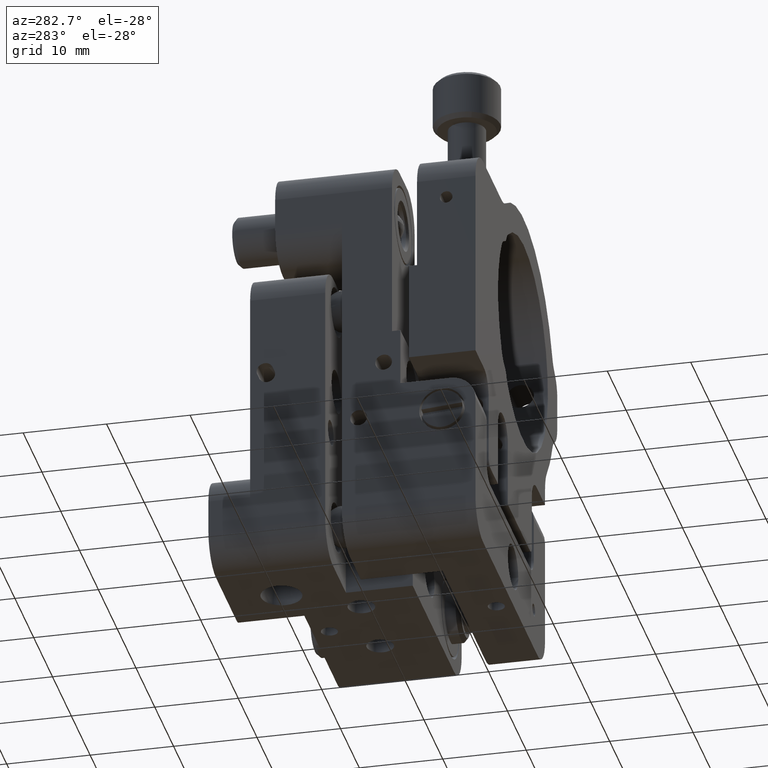
[diagram: clean part render]
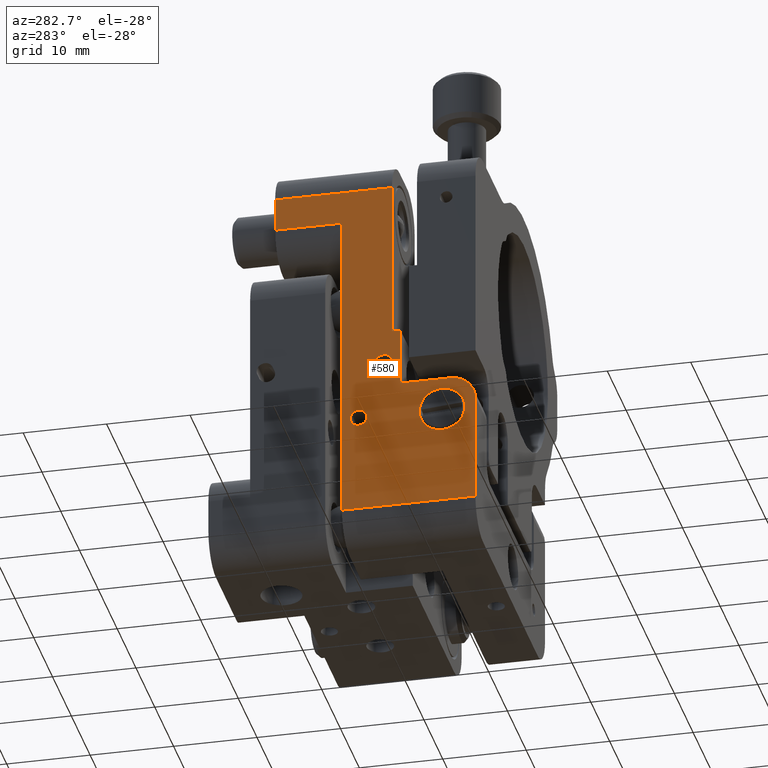
[diagram: same view with one face highlighted and labeled with its STEP entity id]
A machine part, auxiliary view. The second image highlights one B-rep face of the part: STEP entity #580.
In plain terms, the highlighted face is a freeform B-spline surface patch.
Its self-contained STEP definition (entity closure, byte-faithful):
#409=FACE_BOUND('',#1489,.T.);
#410=FACE_BOUND('',#1490,.T.);
#411=FACE_BOUND('',#1491,.T.);
#580=ADVANCED_FACE('',(#1027,#409,#410,#411),#15877,.T.);
#1027=FACE_OUTER_BOUND('',#1488,.T.);
#1488=EDGE_LOOP('',(#2491,#2492,#2493,#2494,#2495,#2496,#2497,#2498,#2499,
#2500,#2501));
#1489=EDGE_LOOP('',(#2502,#2503,#2504));
#1490=EDGE_LOOP('',(#2505,#2506));
#1491=EDGE_LOOP('',(#2507,#2508));
#2491=ORIENTED_EDGE('',*,*,#12777,.F.);
#2492=ORIENTED_EDGE('',*,*,#12849,.T.);
#2493=ORIENTED_EDGE('',*,*,#12850,.T.);
#2494=ORIENTED_EDGE('',*,*,#12851,.T.);
#2495=ORIENTED_EDGE('',*,*,#12852,.T.);
#2496=ORIENTED_EDGE('',*,*,#12853,.T.);
#2497=ORIENTED_EDGE('',*,*,#12854,.T.);
#2498=ORIENTED_EDGE('',*,*,#12855,.T.);
#2499=ORIENTED_EDGE('',*,*,#12781,.F.);
#2500=ORIENTED_EDGE('',*,*,#12763,.F.);
#2501=ORIENTED_EDGE('',*,*,#12759,.F.);
#2502=ORIENTED_EDGE('',*,*,#12833,.F.);
#2503=ORIENTED_EDGE('',*,*,#12838,.F.);
#2504=ORIENTED_EDGE('',*,*,#12837,.F.);
#2505=ORIENTED_EDGE('',*,*,#12815,.F.);
#2506=ORIENTED_EDGE('',*,*,#12819,.F.);
#2507=ORIENTED_EDGE('',*,*,#12856,.T.);
#2508=ORIENTED_EDGE('',*,*,#12857,.T.);
#4748=PCURVE('',#15872,#7122);
#4752=PCURVE('',#15873,#7126);
#4769=PCURVE('',#15874,#7143);
#4774=PCURVE('',#15875,#7148);
#4816=PCURVE('',#16051,#7190);
#4822=PCURVE('',#16052,#7196);
#4840=PCURVE('',#16054,#7214);
#4846=PCURVE('',#16055,#7220);
#4847=PCURVE('',#16055,#7221);
#4865=PCURVE('',#15877,#7239);
#4866=PCURVE('',#15877,#7240);
#4867=PCURVE('',#15877,#7241);
#4868=PCURVE('',#15877,#7242);
#4869=PCURVE('',#15877,#7243);
#4870=PCURVE('',#15877,#7244);
#4871=PCURVE('',#15877,#7245);
#4872=PCURVE('',#15877,#7246);
#4873=PCURVE('',#15877,#7247);
#4874=PCURVE('',#15877,#7248);
#4875=PCURVE('',#15877,#7249);
#4876=PCURVE('',#15877,#7250);
#4877=PCURVE('',#15877,#7251);
#4878=PCURVE('',#15877,#7252);
#4879=PCURVE('',#15877,#7253);
#4880=PCURVE('',#15877,#7254);
#4881=PCURVE('',#15877,#7255);
#4882=PCURVE('',#15877,#7256);
#5074=PCURVE('',#15890,#7448);
#5119=PCURVE('',#15892,#7493);
#5131=PCURVE('',#16080,#7505);
#5139=PCURVE('',#16082,#7513);
#5177=PCURVE('',#16089,#7551);
#5183=PCURVE('',#16090,#7557);
#5224=PCURVE('',#16092,#7598);
#5257=PCURVE('',#16095,#7631);
#5278=PCURVE('',#15901,#7652);
#7122=DEFINITIONAL_REPRESENTATION('',(#9470),#34671);
#7126=DEFINITIONAL_REPRESENTATION('',(#9478),#34671);
#7143=DEFINITIONAL_REPRESENTATION('',(#9493),#34671);
#7148=DEFINITIONAL_REPRESENTATION('',(#9496),#34671);
#7190=DEFINITIONAL_REPRESENTATION('',(#9552),#34671);
#7196=DEFINITIONAL_REPRESENTATION('',(#9560),#34671);
#7214=DEFINITIONAL_REPRESENTATION('',(#9583),#34671);
#7220=DEFINITIONAL_REPRESENTATION('',(#9591),#34671);
#7221=DEFINITIONAL_REPRESENTATION('',(#9592),#34671);
#7239=DEFINITIONAL_REPRESENTATION('',(#9613),#34671);
#7240=DEFINITIONAL_REPRESENTATION('',(#9615),#34671);
#7241=DEFINITIONAL_REPRESENTATION('',(#9617),#34671);
#7242=DEFINITIONAL_REPRESENTATION('',(#9619),#34671);
#7243=DEFINITIONAL_REPRESENTATION('',(#9621),#34671);
#7244=DEFINITIONAL_REPRESENTATION('',(#9623),#34671);
#7245=DEFINITIONAL_REPRESENTATION('',(#9625),#34671);
#7246=DEFINITIONAL_REPRESENTATION('',(#14064),#34671);
#7247=DEFINITIONAL_REPRESENTATION('',(#9626),#34671);
#7248=DEFINITIONAL_REPRESENTATION('',(#9627),#34671);
#7249=DEFINITIONAL_REPRESENTATION('',(#9628),#34671);
#7250=DEFINITIONAL_REPRESENTATION('',(#14065),#34671);
#7251=DEFINITIONAL_REPRESENTATION('',(#14066),#34671);
#7252=DEFINITIONAL_REPRESENTATION('',(#14067),#34671);
#7253=DEFINITIONAL_REPRESENTATION('',(#14068),#34671);
#7254=DEFINITIONAL_REPRESENTATION('',(#14069),#34671);
#7255=DEFINITIONAL_REPRESENTATION('',(#14071),#34671);
#7256=DEFINITIONAL_REPRESENTATION('',(#14073),#34671);
#7448=DEFINITIONAL_REPRESENTATION('',(#9834),#34671);
#7493=DEFINITIONAL_REPRESENTATION('',(#9860),#34671);
#7505=DEFINITIONAL_REPRESENTATION('',(#9868),#34671);
#7513=DEFINITIONAL_REPRESENTATION('',(#9876),#34671);
#7551=DEFINITIONAL_REPRESENTATION('',(#9908),#34671);
#7557=DEFINITIONAL_REPRESENTATION('',(#9914),#34671);
#7598=DEFINITIONAL_REPRESENTATION('',(#9950),#34671);
#7631=DEFINITIONAL_REPRESENTATION('',(#9986),#34671);
#7652=DEFINITIONAL_REPRESENTATION('',(#10006),#34671);
#9469=B_SPLINE_CURVE_WITH_KNOTS('',1,(#21285,#21286),.UNSPECIFIED.,.F.,
 .F.,(2,2),(0.,0.999999999999999),.UNSPECIFIED.);
#9470=B_SPLINE_CURVE_WITH_KNOTS('',1,(#21287,#21288),.UNSPECIFIED.,.F.,
 .F.,(2,2),(0.,0.999999999999999),.UNSPECIFIED.);
#9477=B_SPLINE_CURVE_WITH_KNOTS('',1,(#21301,#21302),.UNSPECIFIED.,.F.,
 .F.,(2,2),(-7.,0.),.UNSPECIFIED.);
#9478=B_SPLINE_CURVE_WITH_KNOTS('',1,(#21303,#21304),.UNSPECIFIED.,.F.,
 .F.,(2,2),(-7.,0.),.UNSPECIFIED.);
#9492=B_SPLINE_CURVE_WITH_KNOTS('',1,(#21383,#21384),.UNSPECIFIED.,.F.,
 .F.,(2,2),(0.,19.),.UNSPECIFIED.);
#9493=B_SPLINE_CURVE_WITH_KNOTS('',1,(#21385,#21386),.UNSPECIFIED.,.F.,
 .F.,(2,2),(0.,19.),.UNSPECIFIED.);
#9495=B_SPLINE_CURVE_WITH_KNOTS('',1,(#21411,#21412),.UNSPECIFIED.,.F.,
 .F.,(2,2),(0.,6.),.UNSPECIFIED.);
#9496=B_SPLINE_CURVE_WITH_KNOTS('',1,(#21413,#21414),.UNSPECIFIED.,.F.,
 .F.,(2,2),(0.,6.),.UNSPECIFIED.);
#9552=B_SPLINE_CURVE_WITH_KNOTS('',1,(#21710,#21711),.UNSPECIFIED.,.F.,
 .F.,(2,2),(0.,3.14159265358979),.UNSPECIFIED.);
#9560=B_SPLINE_CURVE_WITH_KNOTS('',1,(#21755,#21756),.UNSPECIFIED.,.F.,
 .F.,(2,2),(0.,3.14159265358979),.UNSPECIFIED.);
#9583=B_SPLINE_CURVE_WITH_KNOTS('',1,(#21842,#21843),.UNSPECIFIED.,.F.,
 .F.,(2,2),(0.,3.14159265358979),.UNSPECIFIED.);
#9591=B_SPLINE_CURVE_WITH_KNOTS('',1,(#21871,#21872),.UNSPECIFIED.,.F.,
 .F.,(2,2),(3.14159265358979,4.71238898038469),.UNSPECIFIED.);
#9592=B_SPLINE_CURVE_WITH_KNOTS('',1,(#21876,#21877),.UNSPECIFIED.,.F.,
 .F.,(2,2),(0.,1.5707963267949),.UNSPECIFIED.);
#9613=B_SPLINE_CURVE_WITH_KNOTS('',1,(#21954,#21955),.UNSPECIFIED.,.F.,
 .F.,(2,2),(0.,19.),.UNSPECIFIED.);
#9614=B_SPLINE_CURVE_WITH_KNOTS('',1,(#21956,#21957),.UNSPECIFIED.,.F.,
 .F.,(2,2),(0.,14.),.UNSPECIFIED.);
#9615=B_SPLINE_CURVE_WITH_KNOTS('',1,(#21958,#21959),.UNSPECIFIED.,.F.,
 .F.,(2,2),(0.,14.),.UNSPECIFIED.);
#9616=B_SPLINE_CURVE_WITH_KNOTS('',1,(#21960,#21961),.UNSPECIFIED.,.F.,
 .F.,(2,2),(-4.,0.),.UNSPECIFIED.);
#9617=B_SPLINE_CURVE_WITH_KNOTS('',1,(#21962,#21963),.UNSPECIFIED.,.F.,
 .F.,(2,2),(-4.,0.),.UNSPECIFIED.);
#9618=B_SPLINE_CURVE_WITH_KNOTS('',1,(#21964,#21965),.UNSPECIFIED.,.F.,
 .F.,(2,2),(0.,8.),.UNSPECIFIED.);
#9619=B_SPLINE_CURVE_WITH_KNOTS('',1,(#21966,#21967),.UNSPECIFIED.,.F.,
 .F.,(2,2),(0.,8.),.UNSPECIFIED.);
#9620=B_SPLINE_CURVE_WITH_KNOTS('',1,(#21968,#21969),.UNSPECIFIED.,.F.,
 .F.,(2,2),(0.,38.),.UNSPECIFIED.);
#9621=B_SPLINE_CURVE_WITH_KNOTS('',1,(#21970,#21971),.UNSPECIFIED.,.F.,
 .F.,(2,2),(0.,38.),.UNSPECIFIED.);
#9622=B_SPLINE_CURVE_WITH_KNOTS('',1,(#21972,#21973),.UNSPECIFIED.,.F.,
 .F.,(2,2),(-16.,0.),.UNSPECIFIED.);
#9623=B_SPLINE_CURVE_WITH_KNOTS('',1,(#21974,#21975),.UNSPECIFIED.,.F.,
 .F.,(2,2),(-16.,0.),.UNSPECIFIED.);
#9624=B_SPLINE_CURVE_WITH_KNOTS('',1,(#21976,#21977),.UNSPECIFIED.,.F.,
 .F.,(2,2),(0.,13.),.UNSPECIFIED.);
#9625=B_SPLINE_CURVE_WITH_KNOTS('',1,(#21978,#21979),.UNSPECIFIED.,.F.,
 .F.,(2,2),(0.,13.),.UNSPECIFIED.);
#9626=B_SPLINE_CURVE_WITH_KNOTS('',1,(#21986,#21987),.UNSPECIFIED.,.F.,
 .F.,(2,2),(0.,6.),.UNSPECIFIED.);
#9627=B_SPLINE_CURVE_WITH_KNOTS('',1,(#21988,#21989),.UNSPECIFIED.,.F.,
 .F.,(2,2),(-7.,0.),.UNSPECIFIED.);
#9628=B_SPLINE_CURVE_WITH_KNOTS('',1,(#21990,#21991),.UNSPECIFIED.,.F.,
 .F.,(2,2),(0.,0.999999999999999),.UNSPECIFIED.);
#9834=B_SPLINE_CURVE_WITH_KNOTS('',1,(#23055,#23056),.UNSPECIFIED.,.F.,
 .F.,(2,2),(0.,38.),.UNSPECIFIED.);
#9860=B_SPLINE_CURVE_WITH_KNOTS('',1,(#23214,#23215),.UNSPECIFIED.,.F.,
 .F.,(2,2),(-4.,0.),.UNSPECIFIED.);
#9868=B_SPLINE_CURVE_WITH_KNOTS('',1,(#23267,#23268),.UNSPECIFIED.,.F.,
 .F.,(2,2),(0.,8.),.UNSPECIFIED.);
#9876=B_SPLINE_CURVE_WITH_KNOTS('',1,(#23291,#23292),.UNSPECIFIED.,.F.,
 .F.,(2,2),(-16.,0.),.UNSPECIFIED.);
#9908=B_SPLINE_CURVE_WITH_KNOTS('',1,(#23451,#23452),.UNSPECIFIED.,.F.,
 .F.,(2,2),(-8.57497714797334,0.),.UNSPECIFIED.);
#9914=B_SPLINE_CURVE_WITH_KNOTS('',1,(#23477,#23478),.UNSPECIFIED.,.F.,
 .F.,(2,2),(-8.57497714797334,0.),.UNSPECIFIED.);
#9950=B_SPLINE_CURVE_WITH_KNOTS('',1,(#23634,#23635),.UNSPECIFIED.,.F.,
 .F.,(2,2),(0.,4.71238898038469),.UNSPECIFIED.);
#9986=B_SPLINE_CURVE_WITH_KNOTS('',1,(#23726,#23727),.UNSPECIFIED.,.F.,
 .F.,(2,2),(0.,14.),.UNSPECIFIED.);
#10006=B_SPLINE_CURVE_WITH_KNOTS('',1,(#23774,#23775),.UNSPECIFIED.,.F.,
 .F.,(2,2),(0.,13.),.UNSPECIFIED.);
#11545=SURFACE_CURVE('',#9469,(#4748,#4875),.PCURVE_S1.);
#11549=SURFACE_CURVE('',#9477,(#4752,#4874),.PCURVE_S1.);
#11563=SURFACE_CURVE('',#9492,(#4769,#4865),.PCURVE_S1.);
#11567=SURFACE_CURVE('',#9495,(#4774,#4873),.PCURVE_S1.);
#11601=SURFACE_CURVE('',#14041,(#4816,#4879),.PCURVE_S1.);
#11605=SURFACE_CURVE('',#14043,(#4822,#4880),.PCURVE_S1.);
#11619=SURFACE_CURVE('',#14052,(#4840,#4876),.PCURVE_S1.);
#11623=SURFACE_CURVE('',#14054,(#4846,#4878),.PCURVE_S1.);
#11624=SURFACE_CURVE('',#14055,(#4847,#4877),.PCURVE_S1.);
#11635=SURFACE_CURVE('',#9614,(#4866,#5257),.PCURVE_S1.);
#11636=SURFACE_CURVE('',#9616,(#4867,#5119),.PCURVE_S1.);
#11637=SURFACE_CURVE('',#9618,(#4868,#5131),.PCURVE_S1.);
#11638=SURFACE_CURVE('',#9620,(#4869,#5074),.PCURVE_S1.);
#11639=SURFACE_CURVE('',#9622,(#4870,#5139),.PCURVE_S1.);
#11640=SURFACE_CURVE('',#9624,(#4871,#5278),.PCURVE_S1.);
#11641=SURFACE_CURVE('',#14063,(#4872,#5224),.PCURVE_S1.);
#11642=SURFACE_CURVE('',#14070,(#4881,#5183),.PCURVE_S1.);
#11643=SURFACE_CURVE('',#14072,(#4882,#5177),.PCURVE_S1.);
#12759=EDGE_CURVE('',#15196,#15197,#11545,.T.);
#12763=EDGE_CURVE('',#15197,#15200,#11549,.T.);
#12777=EDGE_CURVE('',#15211,#15196,#11563,.T.);
#12781=EDGE_CURVE('',#15200,#15215,#11567,.T.);
#12815=EDGE_CURVE('',#15243,#15244,#11601,.T.);
#12819=EDGE_CURVE('',#15244,#15243,#11605,.T.);
#12833=EDGE_CURVE('',#15257,#15258,#11619,.T.);
#12837=EDGE_CURVE('',#15258,#15260,#11623,.T.);
#12838=EDGE_CURVE('',#15260,#15257,#11624,.T.);
#12849=EDGE_CURVE('',#15211,#15268,#11635,.T.);
#12850=EDGE_CURVE('',#15268,#15269,#11636,.T.);
#12851=EDGE_CURVE('',#15269,#15270,#11637,.T.);
#12852=EDGE_CURVE('',#15270,#15271,#11638,.T.);
#12853=EDGE_CURVE('',#15271,#15272,#11639,.T.);
#12854=EDGE_CURVE('',#15272,#15273,#11640,.T.);
#12855=EDGE_CURVE('',#15273,#15215,#11641,.T.);
#12856=EDGE_CURVE('',#15275,#15274,#11642,.T.);
#12857=EDGE_CURVE('',#15274,#15275,#11643,.T.);
#14041=(
BOUNDED_CURVE()
B_SPLINE_CURVE(2,(#21705,#21706,#21707,#21708,#21709),.UNSPECIFIED.,.F.,
 .F.)
B_SPLINE_CURVE_WITH_KNOTS((3,2,3),(0.,1.57079632679489,3.14159265358979),
 .UNSPECIFIED.)
CURVE()
GEOMETRIC_REPRESENTATION_ITEM()
RATIONAL_B_SPLINE_CURVE((1.,0.707106781186548,1.,0.707106781186548,1.))
REPRESENTATION_ITEM('')
);
#14043=(
BOUNDED_CURVE()
B_SPLINE_CURVE(2,(#21750,#21751,#21752,#21753,#21754),.UNSPECIFIED.,.F.,
 .F.)
B_SPLINE_CURVE_WITH_KNOTS((3,2,3),(0.,1.5707963267949,3.14159265358979),
 .UNSPECIFIED.)
CURVE()
GEOMETRIC_REPRESENTATION_ITEM()
RATIONAL_B_SPLINE_CURVE((1.,0.707106781186548,1.,0.707106781186548,1.))
REPRESENTATION_ITEM('')
);
#14052=(
BOUNDED_CURVE()
B_SPLINE_CURVE(2,(#21837,#21838,#21839,#21840,#21841),.UNSPECIFIED.,.F.,
 .F.)
B_SPLINE_CURVE_WITH_KNOTS((3,2,3),(0.,1.57079632679489,3.14159265358979),
 .UNSPECIFIED.)
CURVE()
GEOMETRIC_REPRESENTATION_ITEM()
RATIONAL_B_SPLINE_CURVE((1.,0.707106781186548,1.,0.707106781186548,1.))
REPRESENTATION_ITEM('')
);
#14054=(
BOUNDED_CURVE()
B_SPLINE_CURVE(2,(#21868,#21869,#21870),.UNSPECIFIED.,.F.,.F.)
B_SPLINE_CURVE_WITH_KNOTS((3,3),(3.14159265358979,4.71238898038469),
 .UNSPECIFIED.)
CURVE()
GEOMETRIC_REPRESENTATION_ITEM()
RATIONAL_B_SPLINE_CURVE((1.,0.707106781186548,1.))
REPRESENTATION_ITEM('')
);
#14055=(
BOUNDED_CURVE()
B_SPLINE_CURVE(2,(#21873,#21874,#21875),.UNSPECIFIED.,.F.,.F.)
B_SPLINE_CURVE_WITH_KNOTS((3,3),(0.,1.5707963267949),.UNSPECIFIED.)
CURVE()
GEOMETRIC_REPRESENTATION_ITEM()
RATIONAL_B_SPLINE_CURVE((1.,0.707106781186548,1.))
REPRESENTATION_ITEM('')
);
#14063=(
BOUNDED_CURVE()
B_SPLINE_CURVE(2,(#21980,#21981,#21982),.UNSPECIFIED.,.F.,.F.)
B_SPLINE_CURVE_WITH_KNOTS((3,3),(0.,4.71238898038469),.UNSPECIFIED.)
CURVE()
GEOMETRIC_REPRESENTATION_ITEM()
RATIONAL_B_SPLINE_CURVE((1.,0.707106781186548,1.))
REPRESENTATION_ITEM('')
);
#14064=(
BOUNDED_CURVE()
B_SPLINE_CURVE(2,(#21983,#21984,#21985),.UNSPECIFIED.,.F.,.F.)
B_SPLINE_CURVE_WITH_KNOTS((3,3),(0.,4.71238898038469),.UNSPECIFIED.)
CURVE()
GEOMETRIC_REPRESENTATION_ITEM()
RATIONAL_B_SPLINE_CURVE((1.,0.707106781186548,1.))
REPRESENTATION_ITEM('')
);
#14065=(
BOUNDED_CURVE()
B_SPLINE_CURVE(2,(#21992,#21993,#21994,#21995,#21996),.UNSPECIFIED.,.F.,
 .F.)
B_SPLINE_CURVE_WITH_KNOTS((3,2,3),(0.,1.5707963267949,3.14159265358979),
 .UNSPECIFIED.)
CURVE()
GEOMETRIC_REPRESENTATION_ITEM()
RATIONAL_B_SPLINE_CURVE((1.,0.707106781186548,1.,0.707106781186548,1.))
REPRESENTATION_ITEM('')
);
#14066=(
BOUNDED_CURVE()
B_SPLINE_CURVE(2,(#21997,#21998,#21999),.UNSPECIFIED.,.F.,.F.)
B_SPLINE_CURVE_WITH_KNOTS((3,3),(0.,1.5707963267949),.UNSPECIFIED.)
CURVE()
GEOMETRIC_REPRESENTATION_ITEM()
RATIONAL_B_SPLINE_CURVE((1.,0.707106781186548,1.))
REPRESENTATION_ITEM('')
);
#14067=(
BOUNDED_CURVE()
B_SPLINE_CURVE(2,(#22000,#22001,#22002),.UNSPECIFIED.,.F.,.F.)
B_SPLINE_CURVE_WITH_KNOTS((3,3),(3.14159265358979,4.71238898038469),
 .UNSPECIFIED.)
CURVE()
GEOMETRIC_REPRESENTATION_ITEM()
RATIONAL_B_SPLINE_CURVE((1.,0.707106781186548,1.))
REPRESENTATION_ITEM('')
);
#14068=(
BOUNDED_CURVE()
B_SPLINE_CURVE(2,(#22003,#22004,#22005,#22006,#22007),.UNSPECIFIED.,.F.,
 .F.)
B_SPLINE_CURVE_WITH_KNOTS((3,2,3),(0.,1.5707963267949,3.14159265358979),
 .UNSPECIFIED.)
CURVE()
GEOMETRIC_REPRESENTATION_ITEM()
RATIONAL_B_SPLINE_CURVE((1.,0.707106781186548,1.,0.707106781186548,1.))
REPRESENTATION_ITEM('')
);
#14069=(
BOUNDED_CURVE()
B_SPLINE_CURVE(2,(#22008,#22009,#22010,#22011,#22012),.UNSPECIFIED.,.F.,
 .F.)
B_SPLINE_CURVE_WITH_KNOTS((3,2,3),(0.,1.5707963267949,3.14159265358979),
 .UNSPECIFIED.)
CURVE()
GEOMETRIC_REPRESENTATION_ITEM()
RATIONAL_B_SPLINE_CURVE((1.,0.707106781186548,1.,0.707106781186548,1.))
REPRESENTATION_ITEM('')
);
#14070=(
BOUNDED_CURVE()
B_SPLINE_CURVE(2,(#22013,#22014,#22015,#22016,#22017),.UNSPECIFIED.,.F.,
 .F.)
B_SPLINE_CURVE_WITH_KNOTS((3,2,3),(-8.57497714797334,-4.28748857398666,
0.),.UNSPECIFIED.)
CURVE()
GEOMETRIC_REPRESENTATION_ITEM()
RATIONAL_B_SPLINE_CURVE((1.,0.707106781186548,1.,0.707106781186548,1.))
REPRESENTATION_ITEM('')
);
#14071=(
BOUNDED_CURVE()
B_SPLINE_CURVE(2,(#22018,#22019,#22020,#22021,#22022),.UNSPECIFIED.,.F.,
 .F.)
B_SPLINE_CURVE_WITH_KNOTS((3,2,3),(-8.57497714797334,-4.28748857398667,
0.),.UNSPECIFIED.)
CURVE()
GEOMETRIC_REPRESENTATION_ITEM()
RATIONAL_B_SPLINE_CURVE((1.,0.707106781186548,1.,0.707106781186548,1.))
REPRESENTATION_ITEM('')
);
#14072=(
BOUNDED_CURVE()
B_SPLINE_CURVE(2,(#22023,#22024,#22025,#22026,#22027),.UNSPECIFIED.,.F.,
 .F.)
B_SPLINE_CURVE_WITH_KNOTS((3,2,3),(-8.57497714797334,-4.28748857398667,
0.),.UNSPECIFIED.)
CURVE()
GEOMETRIC_REPRESENTATION_ITEM()
RATIONAL_B_SPLINE_CURVE((1.,0.707106781186548,1.,0.707106781186548,1.))
REPRESENTATION_ITEM('')
);
#14073=(
BOUNDED_CURVE()
B_SPLINE_CURVE(2,(#22028,#22029,#22030,#22031,#22032),.UNSPECIFIED.,.F.,
 .F.)
B_SPLINE_CURVE_WITH_KNOTS((3,2,3),(-8.57497714797334,-4.28748857398667,
0.),.UNSPECIFIED.)
CURVE()
GEOMETRIC_REPRESENTATION_ITEM()
RATIONAL_B_SPLINE_CURVE((1.,0.707106781186548,1.,0.707106781186548,1.))
REPRESENTATION_ITEM('')
);
#15196=VERTEX_POINT('',#21029);
#15197=VERTEX_POINT('',#21030);
#15200=VERTEX_POINT('',#21033);
#15211=VERTEX_POINT('',#21044);
#15215=VERTEX_POINT('',#21048);
#15243=VERTEX_POINT('',#21076);
#15244=VERTEX_POINT('',#21077);
#15257=VERTEX_POINT('',#21090);
#15258=VERTEX_POINT('',#21091);
#15260=VERTEX_POINT('',#21093);
#15268=VERTEX_POINT('',#21101);
#15269=VERTEX_POINT('',#21102);
#15270=VERTEX_POINT('',#21103);
#15271=VERTEX_POINT('',#21104);
#15272=VERTEX_POINT('',#21105);
#15273=VERTEX_POINT('',#21106);
#15274=VERTEX_POINT('',#21107);
#15275=VERTEX_POINT('',#21108);
#15872=B_SPLINE_SURFACE_WITH_KNOTS('',1,1,((#19905,#19906),(#19907,#19908)),
 .UNSPECIFIED.,.F.,.F.,.F.,(2,2),(2,2),(-1.44,1.2490009027033E-15),(-16.7460024019211,
8.39328606616618E-14),.UNSPECIFIED.);
#15873=B_SPLINE_SURFACE_WITH_KNOTS('',1,1,((#19909,#19910),(#19911,#19912)),
 .UNSPECIFIED.,.F.,.F.,.F.,(2,2),(2,2),(3.5527136788005E-14,44.6399999999998),
(-1.20792265079217E-13,8.64000000000012),.UNSPECIFIED.);
#15874=B_SPLINE_SURFACE_WITH_KNOTS('',1,1,((#19913,#19914),(#19915,#19916)),
 .UNSPECIFIED.,.F.,.F.,.F.,(2,2),(2,2),(-8.39328606616618E-14,16.7460024019211),
(4.44089209850063E-16,27.84),.UNSPECIFIED.);
#15875=B_SPLINE_SURFACE_WITH_KNOTS('',1,1,((#19917,#19918),(#19919,#19920)),
 .UNSPECIFIED.,.F.,.F.,.F.,(2,2),(2,2),(-7.43999999999999,5.55111512312578E-16),
(-15.4525492133607,-3.02646796512818E-13),.UNSPECIFIED.);
#15877=B_SPLINE_SURFACE_WITH_KNOTS('',1,1,((#20215,#20216),(#20217,#20218)),
 .UNSPECIFIED.,.F.,.F.,.F.,(2,2),(2,2),(3.5527136788005E-15,50.64),(0.,
29.04),.UNSPECIFIED.);
#15890=B_SPLINE_SURFACE_WITH_KNOTS('',1,1,((#20609,#20610),(#20611,#20612)),
 .UNSPECIFIED.,.F.,.F.,.F.,(2,2),(2,2),(-44.6399999999998,-3.37507799486048E-14),
(2.93098878501041E-14,50.64),.UNSPECIFIED.);
#15892=B_SPLINE_SURFACE_WITH_KNOTS('',1,1,((#20635,#20636),(#20637,#20638)),
 .UNSPECIFIED.,.F.,.F.,.F.,(2,2),(2,2),(-14.64,-1.26565424807268E-14),(-1.11022302462516E-15,
14.64),.UNSPECIFIED.);
#15901=B_SPLINE_SURFACE_WITH_KNOTS('',1,1,((#20995,#20996),(#20997,#20998)),
 .UNSPECIFIED.,.F.,.F.,.F.,(2,2),(2,2),(4.39648317751562E-14,44.6399999999997),
(-3.10862446895044E-15,20.64),.UNSPECIFIED.);
#16051=(
BOUNDED_SURFACE()
B_SPLINE_SURFACE(1,2,((#20049,#20050,#20051,#20052,#20053,#20054,#20055,
#20056,#20057),(#20058,#20059,#20060,#20061,#20062,#20063,#20064,#20065,
#20066)),.UNSPECIFIED.,.F.,.F.,.F.)
B_SPLINE_SURFACE_WITH_KNOTS((2,2),(3,2,2,2,3),(0.,2.98162644495477),(0.,
1.5707963267949,3.14159265358979,4.71238898038469,6.28318530717959),
 .UNSPECIFIED.)
GEOMETRIC_REPRESENTATION_ITEM()
RATIONAL_B_SPLINE_SURFACE(((1.,0.707106781186548,1.,0.707106781186548,1.,
0.707106781186548,1.,0.707106781186548,1.),(1.,0.707106781186548,1.,0.707106781186548,
1.,0.707106781186548,1.,0.707106781186548,1.)))
REPRESENTATION_ITEM('')
SURFACE()
);
#16052=(
BOUNDED_SURFACE()
B_SPLINE_SURFACE(1,2,((#20067,#20068,#20069,#20070,#20071,#20072,#20073,
#20074,#20075),(#20076,#20077,#20078,#20079,#20080,#20081,#20082,#20083,
#20084)),.UNSPECIFIED.,.F.,.F.,.F.)
B_SPLINE_SURFACE_WITH_KNOTS((2,2),(3,2,2,2,3),(0.,2.98162644495477),(0.,
1.5707963267949,3.14159265358979,4.71238898038469,6.28318530717959),
 .UNSPECIFIED.)
GEOMETRIC_REPRESENTATION_ITEM()
RATIONAL_B_SPLINE_SURFACE(((1.,0.707106781186548,1.,0.707106781186548,1.,
0.707106781186548,1.,0.707106781186548,1.),(1.,0.707106781186548,1.,0.707106781186548,
1.,0.707106781186548,1.,0.707106781186548,1.)))
REPRESENTATION_ITEM('')
SURFACE()
);
#16054=(
BOUNDED_SURFACE()
B_SPLINE_SURFACE(1,2,((#20107,#20108,#20109,#20110,#20111,#20112,#20113,
#20114,#20115),(#20116,#20117,#20118,#20119,#20120,#20121,#20122,#20123,
#20124)),.UNSPECIFIED.,.F.,.F.,.F.)
B_SPLINE_SURFACE_WITH_KNOTS((2,2),(3,2,2,2,3),(0.,4.36591477021199),(0.,
1.5707963267949,3.14159265358979,4.71238898038469,6.28318530717959),
 .UNSPECIFIED.)
GEOMETRIC_REPRESENTATION_ITEM()
RATIONAL_B_SPLINE_SURFACE(((1.,0.707106781186548,1.,0.707106781186548,1.,
0.707106781186548,1.,0.707106781186548,1.),(1.,0.707106781186548,1.,0.707106781186548,
1.,0.707106781186548,1.,0.707106781186548,1.)))
REPRESENTATION_ITEM('')
SURFACE()
);
#16055=(
BOUNDED_SURFACE()
B_SPLINE_SURFACE(1,2,((#20125,#20126,#20127,#20128,#20129,#20130,#20131,
#20132,#20133),(#20134,#20135,#20136,#20137,#20138,#20139,#20140,#20141,
#20142)),.UNSPECIFIED.,.F.,.F.,.F.)
B_SPLINE_SURFACE_WITH_KNOTS((2,2),(3,2,2,2,3),(0.,4.36591477021199),(0.,
1.5707963267949,3.14159265358979,4.71238898038469,6.28318530717959),
 .UNSPECIFIED.)
GEOMETRIC_REPRESENTATION_ITEM()
RATIONAL_B_SPLINE_SURFACE(((1.,0.707106781186548,1.,0.707106781186548,1.,
0.707106781186548,1.,0.707106781186548,1.),(1.,0.707106781186548,1.,0.707106781186548,
1.,0.707106781186548,1.,0.707106781186548,1.)))
REPRESENTATION_ITEM('')
SURFACE()
);
#16080=(
BOUNDED_SURFACE()
B_SPLINE_SURFACE(2,1,((#20639,#20640),(#20641,#20642),(#20643,#20644),(#20645,
#20646),(#20647,#20648),(#20649,#20650),(#20651,#20652),(#20653,#20654),
(#20655,#20656)),.UNSPECIFIED.,.T.,.F.,.F.)
B_SPLINE_SURFACE_WITH_KNOTS((3,2,2,2,3),(2,2),(0.,1.5707963267949,3.14159265358979,
4.71238898038469,6.28318530717959),(0.,9.84),.UNSPECIFIED.)
GEOMETRIC_REPRESENTATION_ITEM()
RATIONAL_B_SPLINE_SURFACE(((1.,1.),(0.707106781186548,0.707106781186548),
(1.,1.),(0.707106781186548,0.707106781186548),(1.,1.),(0.707106781186548,
0.707106781186548),(1.,1.),(0.707106781186548,0.707106781186548),(1.,1.)))
REPRESENTATION_ITEM('')
SURFACE()
);
#16082=(
BOUNDED_SURFACE()
B_SPLINE_SURFACE(2,1,((#20675,#20676),(#20677,#20678),(#20679,#20680),(#20681,
#20682),(#20683,#20684),(#20685,#20686),(#20687,#20688),(#20689,#20690),
(#20691,#20692)),.UNSPECIFIED.,.T.,.F.,.F.)
B_SPLINE_SURFACE_WITH_KNOTS((3,2,2,2,3),(2,2),(0.,1.5707963267949,3.14159265358979,
4.71238898038469,6.28318530717959),(0.,19.44),.UNSPECIFIED.)
GEOMETRIC_REPRESENTATION_ITEM()
RATIONAL_B_SPLINE_SURFACE(((1.,1.),(0.707106781186548,0.707106781186548),
(1.,1.),(0.707106781186548,0.707106781186548),(1.,1.),(0.707106781186548,
0.707106781186548),(1.,1.),(0.707106781186548,0.707106781186548),(1.,1.)))
REPRESENTATION_ITEM('')
SURFACE()
);
#16089=(
BOUNDED_SURFACE()
B_SPLINE_SURFACE(1,2,((#20805,#20806,#20807,#20808,#20809,#20810,#20811,
#20812,#20813),(#20814,#20815,#20816,#20817,#20818,#20819,#20820,#20821,
#20822)),.UNSPECIFIED.,.F.,.F.,.F.)
B_SPLINE_SURFACE_WITH_KNOTS((2,2),(3,2,2,2,3),(0.,7.43999999999997),(0.,
1.5707963267949,3.14159265358979,4.71238898038469,6.28318530717959),
 .UNSPECIFIED.)
GEOMETRIC_REPRESENTATION_ITEM()
RATIONAL_B_SPLINE_SURFACE(((1.,0.707106781186548,1.,0.707106781186548,1.,
0.707106781186548,1.,0.707106781186548,1.),(1.,0.707106781186548,1.,0.707106781186548,
1.,0.707106781186548,1.,0.707106781186548,1.)))
REPRESENTATION_ITEM('')
SURFACE()
);
#16090=(
BOUNDED_SURFACE()
B_SPLINE_SURFACE(1,2,((#20823,#20824,#20825,#20826,#20827,#20828,#20829,
#20830,#20831),(#20832,#20833,#20834,#20835,#20836,#20837,#20838,#20839,
#20840)),.UNSPECIFIED.,.F.,.F.,.F.)
B_SPLINE_SURFACE_WITH_KNOTS((2,2),(3,2,2,2,3),(0.,7.43999999999997),(0.,
1.5707963267949,3.14159265358979,4.71238898038469,6.28318530717959),
 .UNSPECIFIED.)
GEOMETRIC_REPRESENTATION_ITEM()
RATIONAL_B_SPLINE_SURFACE(((1.,0.707106781186548,1.,0.707106781186548,1.,
0.707106781186548,1.,0.707106781186548,1.),(1.,0.707106781186548,1.,0.707106781186548,
1.,0.707106781186548,1.,0.707106781186548,1.)))
REPRESENTATION_ITEM('')
SURFACE()
);
#16092=(
BOUNDED_SURFACE()
B_SPLINE_SURFACE(2,1,((#20871,#20872),(#20873,#20874),(#20875,#20876),(#20877,
#20878),(#20879,#20880),(#20881,#20882),(#20883,#20884),(#20885,#20886),
(#20887,#20888)),.UNSPECIFIED.,.T.,.F.,.F.)
B_SPLINE_SURFACE_WITH_KNOTS((3,2,2,2,3),(2,2),(0.,1.5707963267949,3.14159265358979,
4.71238898038469,6.28318530717959),(0.,7.43999999999997),.UNSPECIFIED.)
GEOMETRIC_REPRESENTATION_ITEM()
RATIONAL_B_SPLINE_SURFACE(((1.,1.),(0.707106781186548,0.707106781186548),
(1.,1.),(0.707106781186548,0.707106781186548),(1.,1.),(0.707106781186548,
0.707106781186548),(1.,1.),(0.707106781186548,0.707106781186548),(1.,1.)))
REPRESENTATION_ITEM('')
SURFACE()
);
#16095=(
BOUNDED_SURFACE()
B_SPLINE_SURFACE(2,1,((#20937,#20938),(#20939,#20940),(#20941,#20942),(#20943,
#20944),(#20945,#20946),(#20947,#20948),(#20949,#20950),(#20951,#20952),
(#20953,#20954)),.UNSPECIFIED.,.T.,.F.,.F.)
B_SPLINE_SURFACE_WITH_KNOTS((3,2,2,2,3),(2,2),(0.,1.5707963267949,3.14159265358979,
4.71238898038469,6.28318530717959),(0.,17.04),.UNSPECIFIED.)
GEOMETRIC_REPRESENTATION_ITEM()
RATIONAL_B_SPLINE_SURFACE(((1.,1.),(0.707106781186548,0.707106781186548),
(1.,1.),(0.707106781186548,0.707106781186548),(1.,1.),(0.707106781186548,
0.707106781186548),(1.,1.),(0.707106781186548,0.707106781186548),(1.,1.)))
REPRESENTATION_ITEM('')
SURFACE()
);
#19905=CARTESIAN_POINT('',(99.3959622264539,20.5252520797228,-1.22));
#19906=CARTESIAN_POINT('',(116.141964628375,20.5252520797228,-1.22));
#19907=CARTESIAN_POINT('',(99.3959622264539,20.5252520797228,0.220000000000005));
#19908=CARTESIAN_POINT('',(116.141964628375,20.5252520797228,0.220000000000005));
#19909=CARTESIAN_POINT('',(118.466464428215,12.7052520797227,-0.999999999999995));
#19910=CARTESIAN_POINT('',(118.466464428215,21.3452520797229,-0.999999999999995));
#19911=CARTESIAN_POINT('',(73.8264644282152,12.7052520797227,-0.999999999999995));
#19912=CARTESIAN_POINT('',(73.8264644282152,21.3452520797229,-0.999999999999995));
#19913=CARTESIAN_POINT('',(116.141964628375,18.1052520797228,4.44089209850064E-15));
#19914=CARTESIAN_POINT('',(116.141964628375,45.9452520797228,4.44089209850064E-15));
#19915=CARTESIAN_POINT('',(99.3959622264539,18.1052520797228,4.44089209850064E-15));
#19916=CARTESIAN_POINT('',(99.3959622264539,45.9452520797228,4.44089209850064E-15));
#19917=CARTESIAN_POINT('',(100.581627649301,13.5252520797228,-7.71999999999999));
#19918=CARTESIAN_POINT('',(116.034176862662,13.5252520797228,-7.71999999999999));
#19919=CARTESIAN_POINT('',(100.581627649301,13.5252520797228,-0.279999999999995));
#19920=CARTESIAN_POINT('',(116.034176862662,13.5252520797228,-0.279999999999995));
#20049=CARTESIAN_POINT('',(114.994933298628,8.52525207972283,4.));
#20050=CARTESIAN_POINT('',(114.994933298628,8.52525207972283,5.));
#20051=CARTESIAN_POINT('',(114.994933298628,9.52525207972283,5.));
#20052=CARTESIAN_POINT('',(114.994933298628,10.5252520797228,5.));
#20053=CARTESIAN_POINT('',(114.994933298628,10.5252520797228,4.));
#20054=CARTESIAN_POINT('',(114.994933298628,10.5252520797228,3.));
#20055=CARTESIAN_POINT('',(114.994933298628,9.52525207972283,3.));
#20056=CARTESIAN_POINT('',(114.994933298628,8.52525207972283,3.));
#20057=CARTESIAN_POINT('',(114.994933298628,8.52525207972283,4.));
#20058=CARTESIAN_POINT('',(112.013306853673,8.52525207972283,4.));
#20059=CARTESIAN_POINT('',(112.013306853673,8.52525207972283,5.));
#20060=CARTESIAN_POINT('',(112.013306853673,9.52525207972283,5.));
#20061=CARTESIAN_POINT('',(112.013306853673,10.5252520797228,5.));
#20062=CARTESIAN_POINT('',(112.013306853673,10.5252520797228,4.));
#20063=CARTESIAN_POINT('',(112.013306853673,10.5252520797228,3.));
#20064=CARTESIAN_POINT('',(112.013306853673,9.52525207972283,3.));
#20065=CARTESIAN_POINT('',(112.013306853673,8.52525207972283,3.));
#20066=CARTESIAN_POINT('',(112.013306853673,8.52525207972283,4.));
#20067=CARTESIAN_POINT('',(114.994933298628,8.52525207972283,4.));
#20068=CARTESIAN_POINT('',(114.994933298628,8.52525207972283,5.));
#20069=CARTESIAN_POINT('',(114.994933298628,9.52525207972283,5.));
#20070=CARTESIAN_POINT('',(114.994933298628,10.5252520797228,5.));
#20071=CARTESIAN_POINT('',(114.994933298628,10.5252520797228,4.));
#20072=CARTESIAN_POINT('',(114.994933298628,10.5252520797228,3.));
#20073=CARTESIAN_POINT('',(114.994933298628,9.52525207972283,3.));
#20074=CARTESIAN_POINT('',(114.994933298628,8.52525207972283,3.));
#20075=CARTESIAN_POINT('',(114.994933298628,8.52525207972283,4.));
#20076=CARTESIAN_POINT('',(112.013306853673,8.52525207972283,4.));
#20077=CARTESIAN_POINT('',(112.013306853673,8.52525207972283,5.));
#20078=CARTESIAN_POINT('',(112.013306853673,9.52525207972283,5.));
#20079=CARTESIAN_POINT('',(112.013306853673,10.5252520797228,5.));
#20080=CARTESIAN_POINT('',(112.013306853673,10.5252520797228,4.));
#20081=CARTESIAN_POINT('',(112.013306853673,10.5252520797228,3.));
#20082=CARTESIAN_POINT('',(112.013306853673,9.52525207972283,3.));
#20083=CARTESIAN_POINT('',(112.013306853673,8.52525207972283,3.));
#20084=CARTESIAN_POINT('',(112.013306853673,8.52525207972283,4.));
#20107=CARTESIAN_POINT('',(115.110290659066,15.5252520797228,1.00000000000001));
#20108=CARTESIAN_POINT('',(115.110290659066,15.5252520797228,2.00000000000001));
#20109=CARTESIAN_POINT('',(115.110290659066,16.5252520797228,2.00000000000001));
#20110=CARTESIAN_POINT('',(115.110290659066,17.5252520797228,2.00000000000001));
#20111=CARTESIAN_POINT('',(115.110290659066,17.5252520797228,1.00000000000001));
#20112=CARTESIAN_POINT('',(115.110290659066,17.5252520797228,1.02140518265514E-14));
#20113=CARTESIAN_POINT('',(115.110290659066,16.5252520797228,9.99200722162641E-15));
#20114=CARTESIAN_POINT('',(115.110290659066,15.5252520797228,9.99200722162641E-15));
#20115=CARTESIAN_POINT('',(115.110290659066,15.5252520797228,1.00000000000001));
#20116=CARTESIAN_POINT('',(110.744375888854,15.5252520797228,1.00000000000001));
#20117=CARTESIAN_POINT('',(110.744375888854,15.5252520797228,2.00000000000001));
#20118=CARTESIAN_POINT('',(110.744375888854,16.5252520797228,2.00000000000001));
#20119=CARTESIAN_POINT('',(110.744375888854,17.5252520797228,2.00000000000001));
#20120=CARTESIAN_POINT('',(110.744375888854,17.5252520797228,1.00000000000001));
#20121=CARTESIAN_POINT('',(110.744375888854,17.5252520797228,1.02140518265514E-14));
#20122=CARTESIAN_POINT('',(110.744375888854,16.5252520797228,9.99200722162641E-15));
#20123=CARTESIAN_POINT('',(110.744375888854,15.5252520797228,9.99200722162641E-15));
#20124=CARTESIAN_POINT('',(110.744375888854,15.5252520797228,1.00000000000001));
#20125=CARTESIAN_POINT('',(115.110290659066,15.5252520797228,1.00000000000001));
#20126=CARTESIAN_POINT('',(115.110290659066,15.5252520797228,2.00000000000001));
#20127=CARTESIAN_POINT('',(115.110290659066,16.5252520797228,2.00000000000001));
#20128=CARTESIAN_POINT('',(115.110290659066,17.5252520797228,2.00000000000001));
#20129=CARTESIAN_POINT('',(115.110290659066,17.5252520797228,1.00000000000001));
#20130=CARTESIAN_POINT('',(115.110290659066,17.5252520797228,1.02140518265514E-14));
#20131=CARTESIAN_POINT('',(115.110290659066,16.5252520797228,9.99200722162641E-15));
#20132=CARTESIAN_POINT('',(115.110290659066,15.5252520797228,9.99200722162641E-15));
#20133=CARTESIAN_POINT('',(115.110290659066,15.5252520797228,1.00000000000001));
#20134=CARTESIAN_POINT('',(110.744375888854,15.5252520797228,1.00000000000001));
#20135=CARTESIAN_POINT('',(110.744375888854,15.5252520797228,2.00000000000001));
#20136=CARTESIAN_POINT('',(110.744375888854,16.5252520797228,2.00000000000001));
#20137=CARTESIAN_POINT('',(110.744375888854,17.5252520797228,2.00000000000001));
#20138=CARTESIAN_POINT('',(110.744375888854,17.5252520797228,1.00000000000001));
#20139=CARTESIAN_POINT('',(110.744375888854,17.5252520797228,1.02140518265514E-14));
#20140=CARTESIAN_POINT('',(110.744375888854,16.5252520797228,9.99200722162641E-15));
#20141=CARTESIAN_POINT('',(110.744375888854,15.5252520797228,9.99200722162641E-15));
#20142=CARTESIAN_POINT('',(110.744375888854,15.5252520797228,1.00000000000001));
#20215=CARTESIAN_POINT('',(114.646464428215,-6.79474792027717,-12.52));
#20216=CARTESIAN_POINT('',(114.646464428215,-6.79474792027717,16.52));
#20217=CARTESIAN_POINT('',(114.646464428215,43.8452520797228,-12.52));
#20218=CARTESIAN_POINT('',(114.646464428215,43.8452520797228,16.52));
#20609=CARTESIAN_POINT('',(73.8264644282152,-10.7947479202772,6.));
#20610=CARTESIAN_POINT('',(73.8264644282152,39.8452520797228,6.));
#20611=CARTESIAN_POINT('',(118.466464428215,-10.7947479202772,6.));
#20612=CARTESIAN_POINT('',(118.466464428215,39.8452520797228,6.));
#20635=CARTESIAN_POINT('',(101.326464428215,30.2052520797228,14.));
#20636=CARTESIAN_POINT('',(101.326464428215,44.8452520797228,14.));
#20637=CARTESIAN_POINT('',(115.966464428215,30.2052520797228,14.));
#20638=CARTESIAN_POINT('',(115.966464428215,44.8452520797228,14.));
#20639=CARTESIAN_POINT('',(110.646464428215,39.5252520797228,14.92));
#20640=CARTESIAN_POINT('',(110.646464428215,39.5252520797228,5.08));
#20641=CARTESIAN_POINT('',(114.646464428215,39.5252520797228,14.92));
#20642=CARTESIAN_POINT('',(114.646464428215,39.5252520797228,5.08));
#20643=CARTESIAN_POINT('',(114.646464428215,35.5252520797228,14.92));
#20644=CARTESIAN_POINT('',(114.646464428215,35.5252520797228,5.08));
#20645=CARTESIAN_POINT('',(114.646464428215,31.5252520797228,14.92));
#20646=CARTESIAN_POINT('',(114.646464428215,31.5252520797228,5.08));
#20647=CARTESIAN_POINT('',(110.646464428215,31.5252520797228,14.92));
#20648=CARTESIAN_POINT('',(110.646464428215,31.5252520797228,5.08));
#20649=CARTESIAN_POINT('',(106.646464428215,31.5252520797228,14.92));
#20650=CARTESIAN_POINT('',(106.646464428215,31.5252520797228,5.08));
#20651=CARTESIAN_POINT('',(106.646464428215,35.5252520797228,14.92));
#20652=CARTESIAN_POINT('',(106.646464428215,35.5252520797228,5.08));
#20653=CARTESIAN_POINT('',(106.646464428215,39.5252520797228,14.92));
#20654=CARTESIAN_POINT('',(106.646464428215,39.5252520797228,5.08));
#20655=CARTESIAN_POINT('',(110.646464428215,39.5252520797228,14.92));
#20656=CARTESIAN_POINT('',(110.646464428215,39.5252520797228,5.08));
#20675=CARTESIAN_POINT('',(110.646464428215,1.52525207972283,7.72));
#20676=CARTESIAN_POINT('',(110.646464428215,1.52525207972283,-11.72));
#20677=CARTESIAN_POINT('',(114.646464428215,1.52525207972283,7.72));
#20678=CARTESIAN_POINT('',(114.646464428215,1.52525207972283,-11.72));
#20679=CARTESIAN_POINT('',(114.646464428215,-2.47474792027717,7.72));
#20680=CARTESIAN_POINT('',(114.646464428215,-2.47474792027717,-11.72));
#20681=CARTESIAN_POINT('',(114.646464428215,-6.47474792027717,7.72));
#20682=CARTESIAN_POINT('',(114.646464428215,-6.47474792027717,-11.72));
#20683=CARTESIAN_POINT('',(110.646464428215,-6.47474792027717,7.72));
#20684=CARTESIAN_POINT('',(110.646464428215,-6.47474792027717,-11.72));
#20685=CARTESIAN_POINT('',(106.646464428215,-6.47474792027717,7.72));
#20686=CARTESIAN_POINT('',(106.646464428215,-6.47474792027717,-11.72));
#20687=CARTESIAN_POINT('',(106.646464428215,-2.47474792027717,7.72));
#20688=CARTESIAN_POINT('',(106.646464428215,-2.47474792027717,-11.72));
#20689=CARTESIAN_POINT('',(106.646464428215,1.52525207972283,7.72));
#20690=CARTESIAN_POINT('',(106.646464428215,1.52525207972283,-11.72));
#20691=CARTESIAN_POINT('',(110.646464428215,1.52525207972283,7.72));
#20692=CARTESIAN_POINT('',(110.646464428215,1.52525207972283,-11.72));
#20805=CARTESIAN_POINT('',(115.366464428215,6.79575207972284,-6.));
#20806=CARTESIAN_POINT('',(115.366464428215,6.79575207972284,-3.2705));
#20807=CARTESIAN_POINT('',(115.366464428215,9.52525207972284,-3.2705));
#20808=CARTESIAN_POINT('',(115.366464428215,12.2547520797228,-3.2705));
#20809=CARTESIAN_POINT('',(115.366464428215,12.2547520797228,-6.));
#20810=CARTESIAN_POINT('',(115.366464428215,12.2547520797228,-8.7295));
#20811=CARTESIAN_POINT('',(115.366464428215,9.52525207972284,-8.7295));
#20812=CARTESIAN_POINT('',(115.366464428215,6.79575207972284,-8.7295));
#20813=CARTESIAN_POINT('',(115.366464428215,6.79575207972284,-6.));
#20814=CARTESIAN_POINT('',(107.926464428215,6.79575207972284,-6.));
#20815=CARTESIAN_POINT('',(107.926464428215,6.79575207972284,-3.2705));
#20816=CARTESIAN_POINT('',(107.926464428215,9.52525207972284,-3.2705));
#20817=CARTESIAN_POINT('',(107.926464428215,12.2547520797228,-3.2705));
#20818=CARTESIAN_POINT('',(107.926464428215,12.2547520797228,-6.));
#20819=CARTESIAN_POINT('',(107.926464428215,12.2547520797228,-8.7295));
#20820=CARTESIAN_POINT('',(107.926464428215,9.52525207972284,-8.7295));
#20821=CARTESIAN_POINT('',(107.926464428215,6.79575207972284,-8.7295));
#20822=CARTESIAN_POINT('',(107.926464428215,6.79575207972284,-6.));
#20823=CARTESIAN_POINT('',(115.366464428215,6.79575207972284,-6.));
#20824=CARTESIAN_POINT('',(115.366464428215,6.79575207972284,-3.2705));
#20825=CARTESIAN_POINT('',(115.366464428215,9.52525207972284,-3.2705));
#20826=CARTESIAN_POINT('',(115.366464428215,12.2547520797228,-3.2705));
#20827=CARTESIAN_POINT('',(115.366464428215,12.2547520797228,-6.));
#20828=CARTESIAN_POINT('',(115.366464428215,12.2547520797228,-8.7295));
#20829=CARTESIAN_POINT('',(115.366464428215,9.52525207972284,-8.7295));
#20830=CARTESIAN_POINT('',(115.366464428215,6.79575207972284,-8.7295));
#20831=CARTESIAN_POINT('',(115.366464428215,6.79575207972284,-6.));
#20832=CARTESIAN_POINT('',(107.926464428215,6.79575207972284,-6.));
#20833=CARTESIAN_POINT('',(107.926464428215,6.79575207972284,-3.2705));
#20834=CARTESIAN_POINT('',(107.926464428215,9.52525207972284,-3.2705));
#20835=CARTESIAN_POINT('',(107.926464428215,12.2547520797228,-3.2705));
#20836=CARTESIAN_POINT('',(107.926464428215,12.2547520797228,-6.));
#20837=CARTESIAN_POINT('',(107.926464428215,12.2547520797228,-8.7295));
#20838=CARTESIAN_POINT('',(107.926464428215,9.52525207972284,-8.7295));
#20839=CARTESIAN_POINT('',(107.926464428215,6.79575207972284,-8.7295));
#20840=CARTESIAN_POINT('',(107.926464428215,6.79575207972284,-6.));
#20871=CARTESIAN_POINT('',(107.926464428215,7.5252520797228,-6.99999999999999));
#20872=CARTESIAN_POINT('',(115.366464428215,7.5252520797228,-6.99999999999999));
#20873=CARTESIAN_POINT('',(107.926464428215,7.5252520797228,-9.99999999999999));
#20874=CARTESIAN_POINT('',(115.366464428215,7.5252520797228,-9.99999999999999));
#20875=CARTESIAN_POINT('',(107.926464428215,10.5252520797228,-9.99999999999999));
#20876=CARTESIAN_POINT('',(115.366464428215,10.5252520797228,-9.99999999999999));
#20877=CARTESIAN_POINT('',(107.926464428215,13.5252520797228,-9.99999999999999));
#20878=CARTESIAN_POINT('',(115.366464428215,13.5252520797228,-9.99999999999999));
#20879=CARTESIAN_POINT('',(107.926464428215,13.5252520797228,-6.99999999999999));
#20880=CARTESIAN_POINT('',(115.366464428215,13.5252520797228,-6.99999999999999));
#20881=CARTESIAN_POINT('',(107.926464428215,13.5252520797228,-3.99999999999999));
#20882=CARTESIAN_POINT('',(115.366464428215,13.5252520797228,-3.99999999999999));
#20883=CARTESIAN_POINT('',(107.926464428215,10.5252520797228,-3.99999999999999));
#20884=CARTESIAN_POINT('',(115.366464428215,10.5252520797228,-3.99999999999999));
#20885=CARTESIAN_POINT('',(107.926464428215,7.5252520797228,-3.99999999999999));
#20886=CARTESIAN_POINT('',(115.366464428215,7.5252520797228,-3.99999999999999));
#20887=CARTESIAN_POINT('',(107.926464428215,7.5252520797228,-6.99999999999999));
#20888=CARTESIAN_POINT('',(115.366464428215,7.5252520797228,-6.99999999999999));
#20937=CARTESIAN_POINT('',(110.646464428215,35.5252520797228,15.52));
#20938=CARTESIAN_POINT('',(110.646464428215,35.5252520797228,-1.52));
#20939=CARTESIAN_POINT('',(106.646464428215,35.5252520797228,15.52));
#20940=CARTESIAN_POINT('',(106.646464428215,35.5252520797228,-1.52));
#20941=CARTESIAN_POINT('',(106.646464428215,39.5252520797228,15.52));
#20942=CARTESIAN_POINT('',(106.646464428215,39.5252520797228,-1.52));
#20943=CARTESIAN_POINT('',(106.646464428215,43.5252520797228,15.52));
#20944=CARTESIAN_POINT('',(106.646464428215,43.5252520797228,-1.52));
#20945=CARTESIAN_POINT('',(110.646464428215,43.5252520797228,15.52));
#20946=CARTESIAN_POINT('',(110.646464428215,43.5252520797228,-1.52));
#20947=CARTESIAN_POINT('',(114.646464428215,43.5252520797228,15.52));
#20948=CARTESIAN_POINT('',(114.646464428215,43.5252520797228,-1.52));
#20949=CARTESIAN_POINT('',(114.646464428215,39.5252520797228,15.52));
#20950=CARTESIAN_POINT('',(114.646464428215,39.5252520797228,-1.52));
#20951=CARTESIAN_POINT('',(114.646464428215,35.5252520797228,15.52));
#20952=CARTESIAN_POINT('',(114.646464428215,35.5252520797228,-1.52));
#20953=CARTESIAN_POINT('',(110.646464428215,35.5252520797228,15.52));
#20954=CARTESIAN_POINT('',(110.646464428215,35.5252520797228,-1.52));
#20995=CARTESIAN_POINT('',(118.466464428215,-8.29474792027717,-10.));
#20996=CARTESIAN_POINT('',(118.466464428215,12.3452520797228,-10.));
#20997=CARTESIAN_POINT('',(73.8264644282153,-8.29474792027717,-10.));
#20998=CARTESIAN_POINT('',(73.8264644282153,12.3452520797228,-10.));
#21029=CARTESIAN_POINT('',(114.646464428215,20.5252520797228,4.44089209850064E-15));
#21030=CARTESIAN_POINT('',(114.646464428215,20.5252520797228,-0.999999999999995));
#21033=CARTESIAN_POINT('',(114.646464428215,13.5252520797228,-0.999999999999995));
#21044=CARTESIAN_POINT('',(114.646464428215,39.5252520797228,4.10782519111309E-15));
#21048=CARTESIAN_POINT('',(114.646464428215,13.5252520797228,-6.99999999999999));
#21076=CARTESIAN_POINT('',(114.646464428215,10.5252520797228,4.));
#21077=CARTESIAN_POINT('',(114.646464428215,8.52525207972283,4.));
#21090=CARTESIAN_POINT('',(114.646464428215,17.5252520797228,1.00000000000001));
#21091=CARTESIAN_POINT('',(114.646464428215,15.5252520797228,1.00000000000001));
#21093=CARTESIAN_POINT('',(114.646464428215,16.5252520797228,9.99200722162641E-15));
#21101=CARTESIAN_POINT('',(114.646464428215,39.5252520797228,14.));
#21102=CARTESIAN_POINT('',(114.646464428215,35.5252520797228,14.));
#21103=CARTESIAN_POINT('',(114.646464428215,35.5252520797228,6.));
#21104=CARTESIAN_POINT('',(114.646464428215,-2.47474792027717,6.));
#21105=CARTESIAN_POINT('',(114.646464428215,-2.47474792027717,-10.));
#21106=CARTESIAN_POINT('',(114.646464428215,10.5252520797228,-9.99999999999999));
#21107=CARTESIAN_POINT('',(114.646464428215,12.2547520797228,-6.));
#21108=CARTESIAN_POINT('',(114.646464428215,6.79575207972284,-6.));
#21285=CARTESIAN_POINT('',(114.646464428215,20.5252520797228,4.44089209850064E-15));
#21286=CARTESIAN_POINT('',(114.646464428215,20.5252520797228,-0.999999999999995));
#21287=CARTESIAN_POINT('',(-0.22,-1.49550020016001));
#21288=CARTESIAN_POINT('',(-1.22,-1.49550020016001));
#21301=CARTESIAN_POINT('',(114.646464428215,20.5252520797228,-0.999999999999995));
#21302=CARTESIAN_POINT('',(114.646464428215,13.5252520797228,-0.999999999999995));
#21303=CARTESIAN_POINT('',(3.82000000000001,7.82));
#21304=CARTESIAN_POINT('',(3.82000000000001,0.82));
#21383=CARTESIAN_POINT('',(114.646464428215,39.5252520797228,4.10782519111309E-15));
#21384=CARTESIAN_POINT('',(114.646464428215,20.5252520797228,4.44089209850064E-15));
#21385=CARTESIAN_POINT('',(1.49550020016001,21.42));
#21386=CARTESIAN_POINT('',(1.49550020016001,2.42));
#21411=CARTESIAN_POINT('',(114.646464428215,13.5252520797228,-0.999999999999995));
#21412=CARTESIAN_POINT('',(114.646464428215,13.5252520797228,-6.99999999999999));
#21413=CARTESIAN_POINT('',(-0.719999999999999,-1.387712434447));
#21414=CARTESIAN_POINT('',(-6.71999999999999,-1.387712434447));
#21705=CARTESIAN_POINT('',(114.646464428215,10.5252520797228,4.));
#21706=CARTESIAN_POINT('',(114.646464428215,10.5252520797228,5.));
#21707=CARTESIAN_POINT('',(114.646464428215,9.52525207972283,5.));
#21708=CARTESIAN_POINT('',(114.646464428215,8.52525207972283,5.));
#21709=CARTESIAN_POINT('',(114.646464428215,8.52525207972283,4.));
#21710=CARTESIAN_POINT('',(0.348468870412981,3.14159265358979));
#21711=CARTESIAN_POINT('',(0.348468870412981,0.));
#21750=CARTESIAN_POINT('',(114.646464428215,8.52525207972283,4.));
#21751=CARTESIAN_POINT('',(114.646464428215,8.52525207972283,3.));
#21752=CARTESIAN_POINT('',(114.646464428215,9.52525207972283,3.));
#21753=CARTESIAN_POINT('',(114.646464428215,10.5252520797228,3.));
#21754=CARTESIAN_POINT('',(114.646464428215,10.5252520797228,4.));
#21755=CARTESIAN_POINT('',(0.348468870412988,6.28318530717959));
#21756=CARTESIAN_POINT('',(0.348468870412981,3.14159265358979));
#21837=CARTESIAN_POINT('',(114.646464428215,17.5252520797228,1.00000000000001));
#21838=CARTESIAN_POINT('',(114.646464428215,17.5252520797228,2.00000000000001));
#21839=CARTESIAN_POINT('',(114.646464428215,16.5252520797228,2.00000000000001));
#21840=CARTESIAN_POINT('',(114.646464428215,15.5252520797228,2.00000000000001));
#21841=CARTESIAN_POINT('',(114.646464428215,15.5252520797228,1.00000000000001));
#21842=CARTESIAN_POINT('',(0.463826230851,3.14159265358979));
#21843=CARTESIAN_POINT('',(0.463826230851,0.));
#21868=CARTESIAN_POINT('',(114.646464428215,15.5252520797228,1.00000000000001));
#21869=CARTESIAN_POINT('',(114.646464428215,15.5252520797228,9.99200722162641E-15));
#21870=CARTESIAN_POINT('',(114.646464428215,16.5252520797228,9.99200722162641E-15));
#21871=CARTESIAN_POINT('',(0.463826230851,6.28318530717959));
#21872=CARTESIAN_POINT('',(0.463826230851001,4.71238898038469));
#21873=CARTESIAN_POINT('',(114.646464428215,16.5252520797228,9.99200722162641E-15));
#21874=CARTESIAN_POINT('',(114.646464428215,17.5252520797228,1.02140518265514E-14));
#21875=CARTESIAN_POINT('',(114.646464428215,17.5252520797228,1.00000000000001));
#21876=CARTESIAN_POINT('',(0.463826230851001,4.71238898038469));
#21877=CARTESIAN_POINT('',(0.463826230851,3.14159265358979));
#21954=CARTESIAN_POINT('',(46.32,12.52));
#21955=CARTESIAN_POINT('',(27.32,12.52));
#21956=CARTESIAN_POINT('',(114.646464428215,39.5252520797228,4.10782519111309E-15));
#21957=CARTESIAN_POINT('',(114.646464428215,39.5252520797228,14.));
#21958=CARTESIAN_POINT('',(46.32,12.52));
#21959=CARTESIAN_POINT('',(46.32,26.52));
#21960=CARTESIAN_POINT('',(114.646464428215,39.5252520797228,14.));
#21961=CARTESIAN_POINT('',(114.646464428215,35.5252520797228,14.));
#21962=CARTESIAN_POINT('',(46.32,26.52));
#21963=CARTESIAN_POINT('',(42.32,26.52));
#21964=CARTESIAN_POINT('',(114.646464428215,35.5252520797228,14.));
#21965=CARTESIAN_POINT('',(114.646464428215,35.5252520797228,6.));
#21966=CARTESIAN_POINT('',(42.32,26.52));
#21967=CARTESIAN_POINT('',(42.32,18.52));
#21968=CARTESIAN_POINT('',(114.646464428215,35.5252520797228,6.));
#21969=CARTESIAN_POINT('',(114.646464428215,-2.47474792027717,6.));
#21970=CARTESIAN_POINT('',(42.32,18.52));
#21971=CARTESIAN_POINT('',(4.32,18.52));
#21972=CARTESIAN_POINT('',(114.646464428215,-2.47474792027717,6.));
#21973=CARTESIAN_POINT('',(114.646464428215,-2.47474792027717,-10.));
#21974=CARTESIAN_POINT('',(4.32,18.52));
#21975=CARTESIAN_POINT('',(4.32,2.52));
#21976=CARTESIAN_POINT('',(114.646464428215,-2.47474792027717,-10.));
#21977=CARTESIAN_POINT('',(114.646464428215,10.5252520797228,-9.99999999999999));
#21978=CARTESIAN_POINT('',(4.32,2.52));
#21979=CARTESIAN_POINT('',(17.32,2.52000000000001));
#21980=CARTESIAN_POINT('',(114.646464428215,10.5252520797228,-9.99999999999999));
#21981=CARTESIAN_POINT('',(114.646464428215,13.5252520797228,-9.99999999999999));
#21982=CARTESIAN_POINT('',(114.646464428215,13.5252520797228,-6.99999999999999));
#21983=CARTESIAN_POINT('',(17.32,2.52000000000001));
#21984=CARTESIAN_POINT('',(20.32,2.52000000000001));
#21985=CARTESIAN_POINT('',(20.32,5.52000000000001));
#21986=CARTESIAN_POINT('',(20.32,11.52));
#21987=CARTESIAN_POINT('',(20.32,5.52000000000001));
#21988=CARTESIAN_POINT('',(27.32,11.52));
#21989=CARTESIAN_POINT('',(20.32,11.52));
#21990=CARTESIAN_POINT('',(27.32,12.52));
#21991=CARTESIAN_POINT('',(27.32,11.52));
#21992=CARTESIAN_POINT('',(24.32,13.52));
#21993=CARTESIAN_POINT('',(24.32,14.52));
#21994=CARTESIAN_POINT('',(23.32,14.52));
#21995=CARTESIAN_POINT('',(22.32,14.52));
#21996=CARTESIAN_POINT('',(22.32,13.52));
#21997=CARTESIAN_POINT('',(23.32,12.52));
#21998=CARTESIAN_POINT('',(24.32,12.52));
#21999=CARTESIAN_POINT('',(24.32,13.52));
#22000=CARTESIAN_POINT('',(22.32,13.52));
#22001=CARTESIAN_POINT('',(22.32,12.52));
#22002=CARTESIAN_POINT('',(23.32,12.52));
#22003=CARTESIAN_POINT('',(17.32,16.52));
#22004=CARTESIAN_POINT('',(17.32,17.52));
#22005=CARTESIAN_POINT('',(16.32,17.52));
#22006=CARTESIAN_POINT('',(15.32,17.52));
#22007=CARTESIAN_POINT('',(15.32,16.52));
#22008=CARTESIAN_POINT('',(15.32,16.52));
#22009=CARTESIAN_POINT('',(15.32,15.52));
#22010=CARTESIAN_POINT('',(16.32,15.52));
#22011=CARTESIAN_POINT('',(17.32,15.52));
#22012=CARTESIAN_POINT('',(17.32,16.52));
#22013=CARTESIAN_POINT('',(114.646464428215,6.79575207972284,-6.));
#22014=CARTESIAN_POINT('',(114.646464428215,6.79575207972284,-3.2705));
#22015=CARTESIAN_POINT('',(114.646464428215,9.52525207972284,-3.2705));
#22016=CARTESIAN_POINT('',(114.646464428215,12.2547520797228,-3.2705));
#22017=CARTESIAN_POINT('',(114.646464428215,12.2547520797228,-6.));
#22018=CARTESIAN_POINT('',(13.5905,6.52));
#22019=CARTESIAN_POINT('',(13.5905,9.2495));
#22020=CARTESIAN_POINT('',(16.32,9.2495));
#22021=CARTESIAN_POINT('',(19.0495,9.2495));
#22022=CARTESIAN_POINT('',(19.0495,6.52));
#22023=CARTESIAN_POINT('',(114.646464428215,12.2547520797228,-6.));
#22024=CARTESIAN_POINT('',(114.646464428215,12.2547520797228,-8.7295));
#22025=CARTESIAN_POINT('',(114.646464428215,9.52525207972284,-8.7295));
#22026=CARTESIAN_POINT('',(114.646464428215,6.79575207972284,-8.7295));
#22027=CARTESIAN_POINT('',(114.646464428215,6.79575207972284,-6.));
#22028=CARTESIAN_POINT('',(19.0495,6.52));
#22029=CARTESIAN_POINT('',(19.0495,3.7905));
#22030=CARTESIAN_POINT('',(16.32,3.7905));
#22031=CARTESIAN_POINT('',(13.5905,3.7905));
#22032=CARTESIAN_POINT('',(13.5905,6.52));
#23055=CARTESIAN_POINT('',(-3.82000000000001,46.32));
#23056=CARTESIAN_POINT('',(-3.82000000000001,8.32000000000003));
#23214=CARTESIAN_POINT('',(-1.32000000000001,9.32));
#23215=CARTESIAN_POINT('',(-1.32000000000001,5.32));
#23267=CARTESIAN_POINT('',(1.5707963267949,0.92));
#23268=CARTESIAN_POINT('',(1.5707963267949,8.92));
#23291=CARTESIAN_POINT('',(1.5707963267949,1.72));
#23292=CARTESIAN_POINT('',(1.5707963267949,17.72));
#23451=CARTESIAN_POINT('',(0.719999999999994,3.14159265358979));
#23452=CARTESIAN_POINT('',(0.719999999999994,6.28318530717959));
#23477=CARTESIAN_POINT('',(0.719999999999994,0.));
#23478=CARTESIAN_POINT('',(0.719999999999994,3.14159265358979));
#23634=CARTESIAN_POINT('',(1.5707963267949,6.71999999999997));
#23635=CARTESIAN_POINT('',(3.14159265358979,6.71999999999997));
#23726=CARTESIAN_POINT('',(4.71238898038469,15.52));
#23727=CARTESIAN_POINT('',(4.71238898038469,1.52));
#23774=CARTESIAN_POINT('',(3.82000000000001,5.82));
#23775=CARTESIAN_POINT('',(3.82000000000001,18.82));
#34671=(
GEOMETRIC_REPRESENTATION_CONTEXT(2)
PARAMETRIC_REPRESENTATION_CONTEXT()
REPRESENTATION_CONTEXT('pspace','')
);